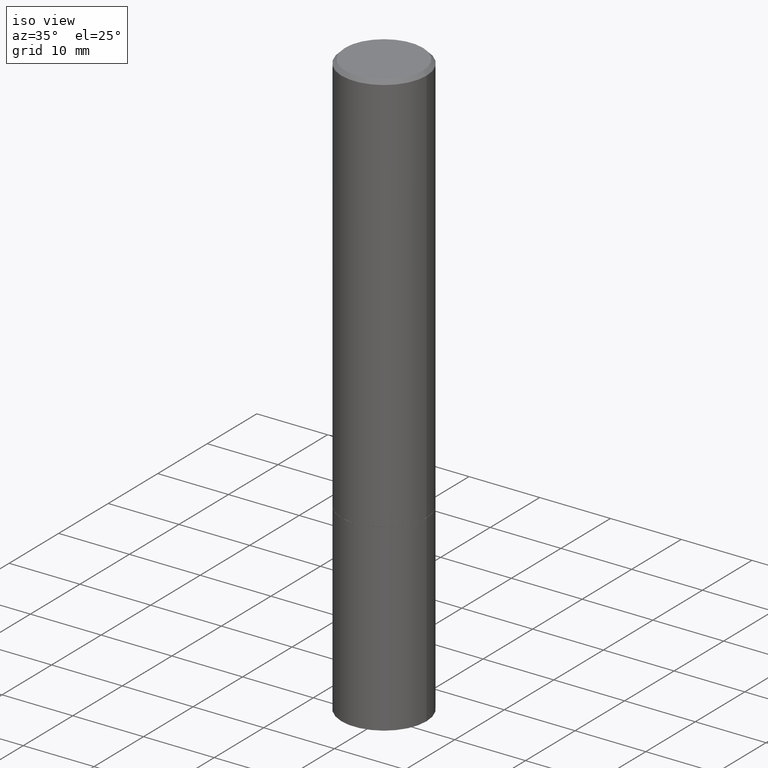
[diagram: clean part render]
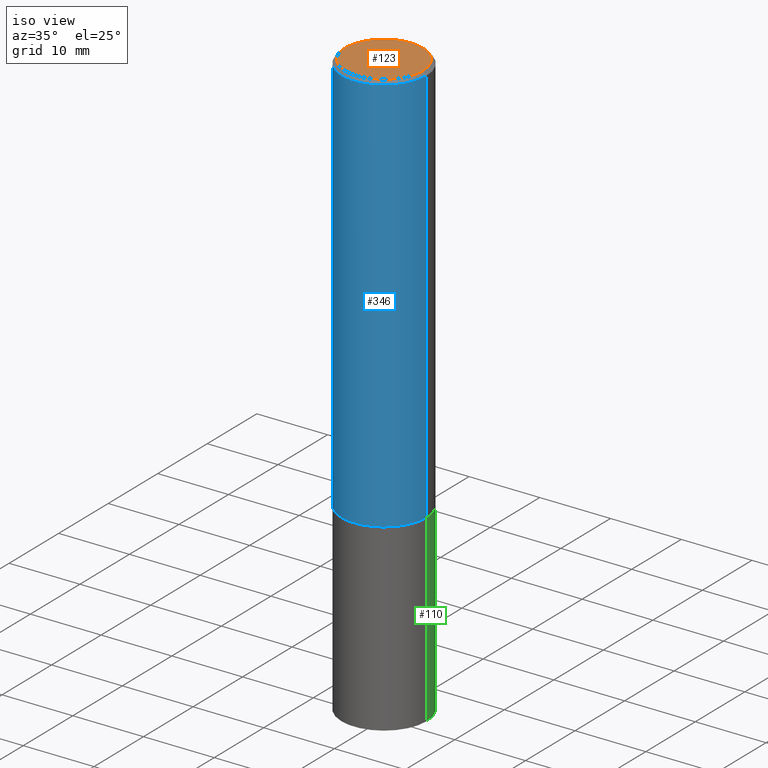
[diagram: same view with three faces highlighted in distinct colors, each labeled with its STEP entity id]
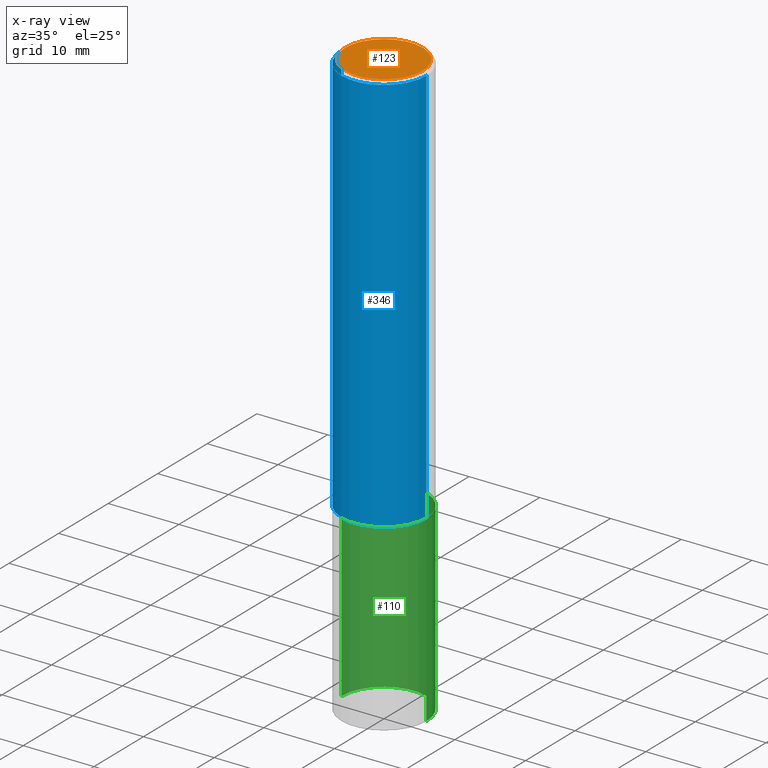
[diagram: x-ray of the same camera — body ghosted, the three highlighted faces saturated]
A machine part, iso view with three faces highlighted in distinct colors.
The next image is the same camera in x-ray (body ghosted, the three faces saturated) — at least one of them is partly hidden behind the body in this view.
Their STEP definitions:

[orange] entity #123 — the highlighted planar face has unit normal (0, -0, -1).
#6 = CARTESIAN_POINT ( 'NONE',  ( 1.509716530915768746E-15, 0.2161999999999997257, -7.527240092128370190E-16 ) ) ;
#19 = DIRECTION ( 'NONE',  ( 1.000000000000000000, -6.982962677686267499E-15, 4.876217060660161841E-29 ) ) ;
#32 = DIRECTION ( 'NONE',  ( -1.000000000000000000, 6.982962677686265922E-15, -4.876176775795935793E-29 ) ) ;
#36 = PLANE ( 'NONE',  #92 ) ;
#37 = VERTEX_POINT ( 'NONE', #278 ) ;
#56 = CIRCLE ( 'NONE', #255, 0.2161999999999997257 ) ;
#61 = DIRECTION ( 'NONE',  ( 2.438088387897960049E-29, -3.491481338843145188E-15, -1.000000000000000000 ) ) ;
#64 = ORIENTED_EDGE ( 'NONE', *, *, #236, .T. ) ;
#92 = AXIS2_PLACEMENT_3D ( 'NONE', #6, #61, #32 ) ;
#98 = ORIENTED_EDGE ( 'NONE', *, *, #234, .T. ) ;
#121 = EDGE_LOOP ( 'NONE', ( #64, #98 ) ) ;
#123 = ADVANCED_FACE ( 'NONE', ( #252 ), #36, .F. ) ;
#138 = AXIS2_PLACEMENT_3D ( 'NONE', #147, #263, #19 ) ;
#147 = CARTESIAN_POINT ( 'NONE',  ( -1.043851414335219820E-46, 1.490343170380447200E-32, 4.268512490100411279E-18 ) ) ;
#183 = CARTESIAN_POINT ( 'NONE',  ( -1.043851414335219820E-46, 1.490343170380447200E-32, 4.268512490100411279E-18 ) ) ;
#184 = VERTEX_POINT ( 'NONE', #351 ) ;
#216 = DIRECTION ( 'NONE',  ( 1.000000000000000000, -6.982962677686267499E-15, 4.876217060660161841E-29 ) ) ;
#234 = EDGE_CURVE ( 'NONE', #37, #184, #56, .T. ) ;
#236 = EDGE_CURVE ( 'NONE', #184, #37, #360, .T. ) ;
#244 = DIRECTION ( 'NONE',  ( -2.445468806185136597E-29, 3.491481338843145583E-15, 1.000000000000000000 ) ) ;
#252 = FACE_OUTER_BOUND ( 'NONE', #121, .T. ) ;
#255 = AXIS2_PLACEMENT_3D ( 'NONE', #183, #244, #216 ) ;
#263 = DIRECTION ( 'NONE',  ( -2.445468806185136597E-29, 3.491481338843145583E-15, 1.000000000000000000 ) ) ;
#278 = CARTESIAN_POINT ( 'NONE',  ( 0.2161999999999997257, -1.586759460484350016E-15, 4.268512490111238857E-18 ) ) ;
#351 = CARTESIAN_POINT ( 'NONE',  ( -0.2161999999999997257, 1.544631344304200197E-15, 4.268512490089730842E-18 ) ) ;
#360 = CIRCLE ( 'NONE', #138, 0.2161999999999997257 ) ;

[blue] entity #346 — the highlighted cylindrical surface (partial cylindrical patch) has radius 5.9995 mm, axis along (-0, 0, 1).
#17 = CARTESIAN_POINT ( 'NONE',  ( 0.2361999999999999933, -9.481117575628557435E-15, -2.243100000000000094 ) ) ;
#18 = EDGE_CURVE ( 'NONE', #274, #178, #200, .T. ) ;
#21 = AXIS2_PLACEMENT_3D ( 'NONE', #129, #277, #159 ) ;
#31 = CARTESIAN_POINT ( 'NONE',  ( -0.2362000000000000210, -2.272483767102602555E-15, -2.243100000000000094 ) ) ;
#33 = EDGE_CURVE ( 'NONE', #274, #241, #222, .T. ) ;
#35 = CARTESIAN_POINT ( 'NONE',  ( 0.000000000000000000, 0.000000000000000000, 0.000000000000000000 ) ) ;
#42 = EDGE_CURVE ( 'NONE', #241, #127, #307, .T. ) ;
#49 = AXIS2_PLACEMENT_3D ( 'NONE', #35, #130, #164 ) ;
#54 = ORIENTED_EDGE ( 'NONE', *, *, #33, .F. ) ;
#78 = ORIENTED_EDGE ( 'NONE', *, *, #42, .F. ) ;
#80 = CARTESIAN_POINT ( 'NONE',  ( 0.2361999999999998545, -1.649375784469495145E-15, 1.151752954442999387E-29 ) ) ;
#84 = DIRECTION ( 'NONE',  ( -2.445468806185136597E-29, 3.491481338843145583E-15, 1.000000000000000000 ) ) ;
#105 = EDGE_CURVE ( 'NONE', #178, #127, #345, .T. ) ;
#127 = VERTEX_POINT ( 'NONE', #133 ) ;
#129 = CARTESIAN_POINT ( 'NONE',  ( 4.890937612370285420E-31, -6.982962677686308865E-17, -0.02000000000000005246 ) ) ;
#130 = DIRECTION ( 'NONE',  ( -2.445468806185136597E-29, 3.491481338843145583E-15, 1.000000000000000000 ) ) ;
#133 = CARTESIAN_POINT ( 'NONE',  ( 0.2361999999999997157, -1.690279253850496996E-15, -0.02000000000000005246 ) ) ;
#157 = CARTESIAN_POINT ( 'NONE',  ( 5.485431079153880270E-29, -7.831741791159060910E-15, -2.243100000000000094 ) ) ;
#159 = DIRECTION ( 'NONE',  ( 1.000000000000000000, -6.982962677686266711E-15, 0.000000000000000000 ) ) ;
#163 = AXIS2_PLACEMENT_3D ( 'NONE', #157, #84, #308 ) ;
#164 = DIRECTION ( 'NONE',  ( 1.000000000000000000, -6.982962677686266711E-15, 4.876176775795935793E-29 ) ) ;
#178 = VERTEX_POINT ( 'NONE', #17 ) ;
#200 = CIRCLE ( 'NONE', #163, 0.2361999999999999933 ) ;
#210 = ORIENTED_EDGE ( 'NONE', *, *, #18, .T. ) ;
#222 = LINE ( 'NONE', #254, #291 ) ;
#241 = VERTEX_POINT ( 'NONE', #328 ) ;
#254 = CARTESIAN_POINT ( 'NONE',  ( -0.2361999999999998545, 1.678301941865355605E-15, -1.161852468318208056E-29 ) ) ;
#274 = VERTEX_POINT ( 'NONE', #31 ) ;
#275 = CYLINDRICAL_SURFACE ( 'NONE', #49, 0.2361999999999998545 ) ;
#277 = DIRECTION ( 'NONE',  ( -2.445468806185136597E-29, 3.491481338843145583E-15, 1.000000000000000000 ) ) ;
#291 = VECTOR ( 'NONE', #366, 39.37007874015748143 ) ;
#296 = EDGE_LOOP ( 'NONE', ( #54, #210, #335, #78 ) ) ;
#307 = CIRCLE ( 'NONE', #21, 0.2361999999999997157 ) ;
#308 = DIRECTION ( 'NONE',  ( 1.000000000000000000, -6.982962677686269077E-15, 0.000000000000000000 ) ) ;
#322 = VECTOR ( 'NONE', #337, 39.37007874015748143 ) ;
#328 = CARTESIAN_POINT ( 'NONE',  ( -0.2361999999999997157, 1.579546157692631255E-15, -0.02000000000000005246 ) ) ;
#335 = ORIENTED_EDGE ( 'NONE', *, *, #105, .T. ) ;
#337 = DIRECTION ( 'NONE',  ( -2.445468806185136877E-29, 3.491481338843145188E-15, 1.000000000000000000 ) ) ;
#341 = FACE_OUTER_BOUND ( 'NONE', #296, .T. ) ;
#345 = LINE ( 'NONE', #80, #322 ) ;
#346 = ADVANCED_FACE ( 'NONE', ( #341 ), #275, .T. ) ;
#366 = DIRECTION ( 'NONE',  ( -2.445468806185136877E-29, 3.491481338843145188E-15, 1.000000000000000000 ) ) ;

[green] entity #110 — the highlighted cylindrical surface (partial cylindrical patch) has radius 5.9995 mm, axis along (-0, 0, 1).
#8 = VECTOR ( 'NONE', #320, 39.37007874015748143 ) ;
#24 = ORIENTED_EDGE ( 'NONE', *, *, #191, .T. ) ;
#27 = AXIS2_PLACEMENT_3D ( 'NONE', #188, #34, #251 ) ;
#30 = CARTESIAN_POINT ( 'NONE',  ( 7.991058417971171713E-29, -1.140911357093774644E-14, -3.267700000000000049 ) ) ;
#34 = DIRECTION ( 'NONE',  ( -2.445468806185136597E-29, 3.491481338843145583E-15, 1.000000000000000000 ) ) ;
#39 = VECTOR ( 'NONE', #221, 39.37007874015748143 ) ;
#44 = CARTESIAN_POINT ( 'NONE',  ( -0.2361999999999999933, -7.943871479852467996E-15, -2.244100000000000428 ) ) ;
#63 = DIRECTION ( 'NONE',  ( -2.445468806185136597E-29, 3.491481338843145583E-15, 1.000000000000000000 ) ) ;
#87 = CARTESIAN_POINT ( 'NONE',  ( 0.2361999999999999933, -1.649375784469496131E-15, 1.151752954443000088E-29 ) ) ;
#95 = LINE ( 'NONE', #202, #8 ) ;
#96 = DIRECTION ( 'NONE',  ( 1.000000000000000000, -6.982962677686269077E-15, 0.000000000000000000 ) ) ;
#102 = EDGE_CURVE ( 'NONE', #264, #151, #242, .T. ) ;
#106 = VERTEX_POINT ( 'NONE', #231 ) ;
#110 = ADVANCED_FACE ( 'NONE', ( #165 ), #284, .T. ) ;
#115 = ORIENTED_EDGE ( 'NONE', *, *, #357, .F. ) ;
#144 = CARTESIAN_POINT ( 'NONE',  ( 5.487876547960065873E-29, -7.835233272497903917E-15, -2.244100000000000428 ) ) ;
#151 = VERTEX_POINT ( 'NONE', #288 ) ;
#165 = FACE_OUTER_BOUND ( 'NONE', #192, .T. ) ;
#168 = DIRECTION ( 'NONE',  ( 1.000000000000000000, -6.982962677686265133E-15, 0.000000000000000000 ) ) ;
#180 = AXIS2_PLACEMENT_3D ( 'NONE', #30, #63, #168 ) ;
#188 = CARTESIAN_POINT ( 'NONE',  ( 0.000000000000000000, 0.000000000000000000, 0.000000000000000000 ) ) ;
#191 = EDGE_CURVE ( 'NONE', #151, #215, #95, .T. ) ;
#192 = EDGE_LOOP ( 'NONE', ( #363, #24, #285, #115 ) ) ;
#202 = CARTESIAN_POINT ( 'NONE',  ( -0.2361999999999999933, 1.678301941865356591E-15, -1.161852468318208757E-29 ) ) ;
#204 = AXIS2_PLACEMENT_3D ( 'NONE', #144, #261, #96 ) ;
#215 = VERTEX_POINT ( 'NONE', #44 ) ;
#221 = DIRECTION ( 'NONE',  ( -2.445468806185136877E-29, 3.491481338843145188E-15, 1.000000000000000000 ) ) ;
#224 = EDGE_CURVE ( 'NONE', #106, #215, #229, .T. ) ;
#229 = CIRCLE ( 'NONE', #204, 0.2361999999999999933 ) ;
#231 = CARTESIAN_POINT ( 'NONE',  ( 0.2361999999999999933, -9.484609056967400443E-15, -2.244100000000000428 ) ) ;
#242 = CIRCLE ( 'NONE', #180, 0.2361999999999999933 ) ;
#251 = DIRECTION ( 'NONE',  ( 1.000000000000000000, -6.982962677686266711E-15, 4.876176775795936353E-29 ) ) ;
#261 = DIRECTION ( 'NONE',  ( -2.445468806185136597E-29, 3.491481338843145583E-15, 1.000000000000000000 ) ) ;
#264 = VERTEX_POINT ( 'NONE', #266 ) ;
#266 = CARTESIAN_POINT ( 'NONE',  ( 0.2361999999999999933, -1.305848935540724297E-14, -3.267700000000000049 ) ) ;
#284 = CYLINDRICAL_SURFACE ( 'NONE', #27, 0.2361999999999999933 ) ;
#285 = ORIENTED_EDGE ( 'NONE', *, *, #224, .F. ) ;
#288 = CARTESIAN_POINT ( 'NONE',  ( -0.2361999999999999933, -7.943871479852467996E-15, -3.267700000000000049 ) ) ;
#310 = LINE ( 'NONE', #87, #39 ) ;
#320 = DIRECTION ( 'NONE',  ( -2.445468806185136877E-29, 3.491481338843145188E-15, 1.000000000000000000 ) ) ;
#357 = EDGE_CURVE ( 'NONE', #264, #106, #310, .T. ) ;
#363 = ORIENTED_EDGE ( 'NONE', *, *, #102, .T. ) ;